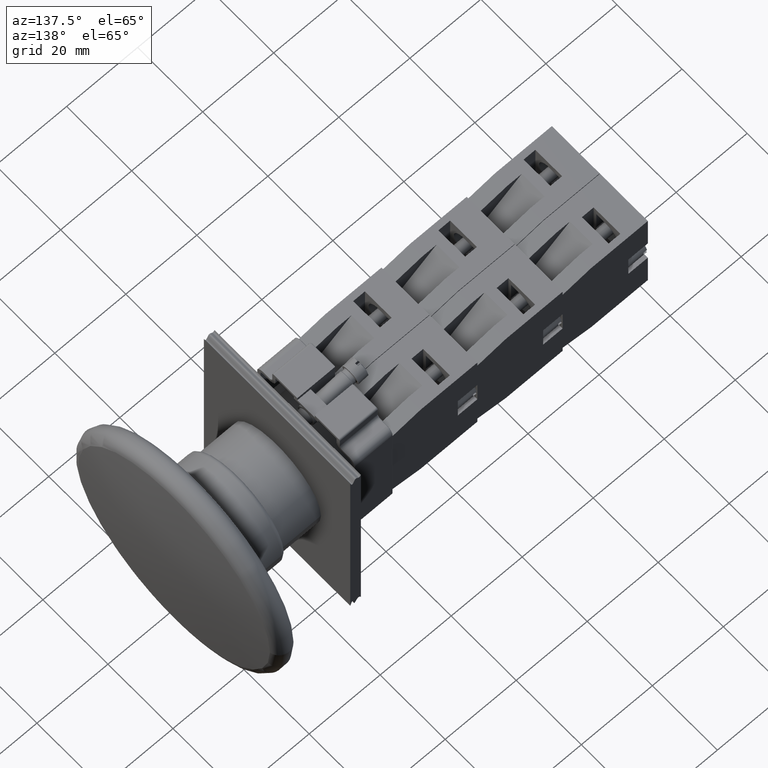
[diagram: clean part render]
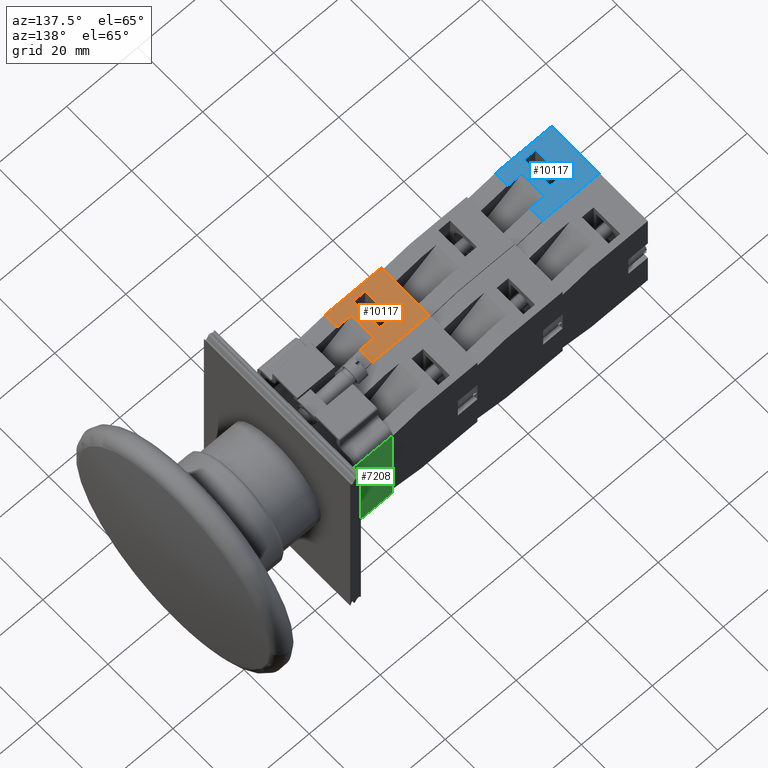
[diagram: same view with three faces highlighted in distinct colors, each labeled with its STEP entity id]
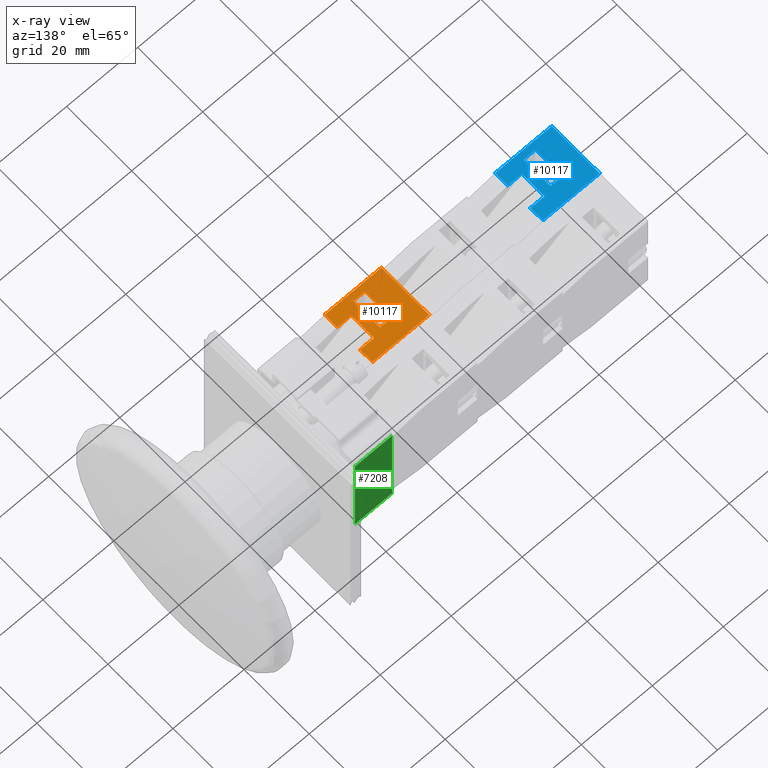
[diagram: x-ray of the same camera — body ghosted, the three highlighted faces saturated]
A machine part, auxiliary view with three faces highlighted in distinct colors.
The next image is the same camera in x-ray (body ghosted, the three faces saturated) — at least one of them is partly hidden behind the body in this view.
Their STEP definitions:

[orange] entity #10117 — the highlighted planar face has unit normal (0, 0, 1).
#8578=CARTESIAN_POINT('',(-15.936741828918466,7.797073323279626,10.850000000000000));
#8579=VERTEX_POINT('',#8578);
#8594=CARTESIAN_POINT('',(-15.936741828918466,11.797073323279626,10.850000000000000));
#8595=VERTEX_POINT('',#8594);
#8602=CARTESIAN_POINT('',(-15.936741828918466,7.797073323279626,10.850000000000000));
#8603=DIRECTION('',(0.0,1.0,0.0));
#8604=VECTOR('',#8603,4.0);
#8605=LINE('',#8602,#8604);
#8606=EDGE_CURVE('',#8579,#8595,#8605,.T.);
#8616=CARTESIAN_POINT('',(-15.936741828918466,11.797073323279626,3.850000000000001));
#8617=VERTEX_POINT('',#8616);
#8626=CARTESIAN_POINT('',(-15.936741828918466,11.797073323279626,10.850000000000000));
#8627=DIRECTION('',(0.0,0.0,-1.0));
#8628=VECTOR('',#8627,6.999999999999999);
#8629=LINE('',#8626,#8628);
#8630=EDGE_CURVE('',#8595,#8617,#8629,.T.);
#8647=CARTESIAN_POINT('',(-15.936741828918466,7.797073323279631,3.850000000000000));
#8648=VERTEX_POINT('',#8647);
#8657=CARTESIAN_POINT('',(-15.936741828918466,11.797073323279626,3.850000000000001));
#8658=DIRECTION('',(0.0,-1.0,0.0));
#8659=VECTOR('',#8658,3.999999999999996);
#8660=LINE('',#8657,#8659);
#8661=EDGE_CURVE('',#8617,#8648,#8660,.T.);
#8797=CARTESIAN_POINT('',(-15.936741828918466,7.797073323279626,14.699999999999999));
#8798=VERTEX_POINT('',#8797);
#8799=CARTESIAN_POINT('',(-15.936741828918466,7.797073323279626,10.850000000000000));
#8800=DIRECTION('',(0.0,0.0,1.0));
#8801=VECTOR('',#8800,3.850000000000000);
#8802=LINE('',#8799,#8801);
#8803=EDGE_CURVE('',#8579,#8798,#8802,.T.);
#9225=CARTESIAN_POINT('',(-15.936741828918466,17.597073323279638,4.800000000000001));
#9226=VERTEX_POINT('',#9225);
#9233=CARTESIAN_POINT('',(-15.936741828918466,17.597073323279638,13.0));
#9234=VERTEX_POINT('',#9233);
#9235=CARTESIAN_POINT('',(-15.936741828918466,17.597073323279638,13.0));
#9236=DIRECTION('',(0.0,0.0,-1.0));
#9237=VECTOR('',#9236,8.199999999999999);
#9238=LINE('',#9235,#9237);
#9239=EDGE_CURVE('',#9234,#9226,#9238,.T.);
#9316=CARTESIAN_POINT('',(-15.936741828918475,14.297073323279639,13.0));
#9317=VERTEX_POINT('',#9316);
#9318=CARTESIAN_POINT('',(-15.936741828918475,14.297073323279639,13.0));
#9319=DIRECTION('',(0.0,1.0,0.0));
#9320=VECTOR('',#9319,3.299999999999999);
#9321=LINE('',#9318,#9320);
#9322=EDGE_CURVE('',#9317,#9234,#9321,.T.);
#9534=CARTESIAN_POINT('',(-15.936741828918475,14.297073323279637,4.800000000000002));
#9535=VERTEX_POINT('',#9534);
#9542=CARTESIAN_POINT('',(-15.936741828918466,17.597073323279638,4.800000000000001));
#9543=DIRECTION('',(0.0,-1.0,0.0));
#9544=VECTOR('',#9543,3.300000000000001);
#9545=LINE('',#9542,#9544);
#9546=EDGE_CURVE('',#9226,#9535,#9545,.T.);
#9791=CARTESIAN_POINT('',(-15.936741828918475,14.297073323279637,4.800000000000002));
#9792=DIRECTION('',(0.0,0.0,1.0));
#9793=VECTOR('',#9792,8.199999999999999);
#9794=LINE('',#9791,#9793);
#9795=EDGE_CURVE('',#9535,#9317,#9794,.T.);
#10029=CARTESIAN_POINT('',(-15.936741828918466,23.797073323279626,14.699999999999999));
#10030=VERTEX_POINT('',#10029);
#10037=CARTESIAN_POINT('',(-15.936741828918466,23.797073323279626,0.0));
#10038=VERTEX_POINT('',#10037);
#10039=CARTESIAN_POINT('',(-15.936741828918466,23.797073323279626,0.0));
#10040=DIRECTION('',(0.0,0.0,1.0));
#10041=VECTOR('',#10040,14.699999999999999);
#10042=LINE('',#10039,#10041);
#10043=EDGE_CURVE('',#10038,#10030,#10042,.T.);
#10079=CARTESIAN_POINT('',(-15.936741828918466,23.797073323279626,0.0));
#10080=DIRECTION('',(1.0,0.0,0.0));
#10081=DIRECTION('',(0.0,0.0,-1.0));
#10082=AXIS2_PLACEMENT_3D('',#10079,#10080,#10081);
#10083=PLANE('',#10082);
#10084=ORIENTED_EDGE('',*,*,#8661,.T.);
#10085=CARTESIAN_POINT('',(-15.936741828918466,7.797073323279626,0.0));
#10086=VERTEX_POINT('',#10085);
#10087=CARTESIAN_POINT('',(-15.936741828918466,7.797073323279626,0.0));
#10088=DIRECTION('',(0.0,0.0,1.0));
#10089=VECTOR('',#10088,3.850000000000000);
#10090=LINE('',#10087,#10089);
#10091=EDGE_CURVE('',#10086,#8648,#10090,.T.);
#10092=ORIENTED_EDGE('',*,*,#10091,.F.);
#10093=CARTESIAN_POINT('',(-15.936741828918466,23.797073323279626,0.0));
#10094=DIRECTION('',(0.0,-1.0,0.0));
#10095=VECTOR('',#10094,16.0);
#10096=LINE('',#10093,#10095);
#10097=EDGE_CURVE('',#10038,#10086,#10096,.T.);
#10098=ORIENTED_EDGE('',*,*,#10097,.F.);
#10099=ORIENTED_EDGE('',*,*,#10043,.T.);
#10100=CARTESIAN_POINT('',(-15.936741828918466,23.797073323279626,14.699999999999999));
#10101=DIRECTION('',(0.0,-1.0,0.0));
#10102=VECTOR('',#10101,16.0);
#10103=LINE('',#10100,#10102);
#10104=EDGE_CURVE('',#10030,#8798,#10103,.T.);
#10105=ORIENTED_EDGE('',*,*,#10104,.T.);
#10106=ORIENTED_EDGE('',*,*,#8803,.F.);
#10107=ORIENTED_EDGE('',*,*,#8606,.T.);
#10108=ORIENTED_EDGE('',*,*,#8630,.T.);
#10109=EDGE_LOOP('',(#10084,#10092,#10098,#10099,#10105,#10106,#10107,#10108));
#10110=FACE_OUTER_BOUND('',#10109,.T.);
#10111=ORIENTED_EDGE('',*,*,#9546,.T.);
#10112=ORIENTED_EDGE('',*,*,#9795,.T.);
#10113=ORIENTED_EDGE('',*,*,#9322,.T.);
#10114=ORIENTED_EDGE('',*,*,#9239,.T.);
#10115=EDGE_LOOP('',(#10111,#10112,#10113,#10114));
#10116=FACE_BOUND('',#10115,.T.);
#10117=ADVANCED_FACE('',(#10110,#10116),#10083,.T.);

[blue] entity #10117 — the highlighted planar face has unit normal (0, 0, 1).
#8578=CARTESIAN_POINT('',(-15.936741828918466,7.797073323279626,10.850000000000000));
#8579=VERTEX_POINT('',#8578);
#8594=CARTESIAN_POINT('',(-15.936741828918466,11.797073323279626,10.850000000000000));
#8595=VERTEX_POINT('',#8594);
#8602=CARTESIAN_POINT('',(-15.936741828918466,7.797073323279626,10.850000000000000));
#8603=DIRECTION('',(0.0,1.0,0.0));
#8604=VECTOR('',#8603,4.0);
#8605=LINE('',#8602,#8604);
#8606=EDGE_CURVE('',#8579,#8595,#8605,.T.);
#8616=CARTESIAN_POINT('',(-15.936741828918466,11.797073323279626,3.850000000000001));
#8617=VERTEX_POINT('',#8616);
#8626=CARTESIAN_POINT('',(-15.936741828918466,11.797073323279626,10.850000000000000));
#8627=DIRECTION('',(0.0,0.0,-1.0));
#8628=VECTOR('',#8627,6.999999999999999);
#8629=LINE('',#8626,#8628);
#8630=EDGE_CURVE('',#8595,#8617,#8629,.T.);
#8647=CARTESIAN_POINT('',(-15.936741828918466,7.797073323279631,3.850000000000000));
#8648=VERTEX_POINT('',#8647);
#8657=CARTESIAN_POINT('',(-15.936741828918466,11.797073323279626,3.850000000000001));
#8658=DIRECTION('',(0.0,-1.0,0.0));
#8659=VECTOR('',#8658,3.999999999999996);
#8660=LINE('',#8657,#8659);
#8661=EDGE_CURVE('',#8617,#8648,#8660,.T.);
#8797=CARTESIAN_POINT('',(-15.936741828918466,7.797073323279626,14.699999999999999));
#8798=VERTEX_POINT('',#8797);
#8799=CARTESIAN_POINT('',(-15.936741828918466,7.797073323279626,10.850000000000000));
#8800=DIRECTION('',(0.0,0.0,1.0));
#8801=VECTOR('',#8800,3.850000000000000);
#8802=LINE('',#8799,#8801);
#8803=EDGE_CURVE('',#8579,#8798,#8802,.T.);
#9225=CARTESIAN_POINT('',(-15.936741828918466,17.597073323279638,4.800000000000001));
#9226=VERTEX_POINT('',#9225);
#9233=CARTESIAN_POINT('',(-15.936741828918466,17.597073323279638,13.0));
#9234=VERTEX_POINT('',#9233);
#9235=CARTESIAN_POINT('',(-15.936741828918466,17.597073323279638,13.0));
#9236=DIRECTION('',(0.0,0.0,-1.0));
#9237=VECTOR('',#9236,8.199999999999999);
#9238=LINE('',#9235,#9237);
#9239=EDGE_CURVE('',#9234,#9226,#9238,.T.);
#9316=CARTESIAN_POINT('',(-15.936741828918475,14.297073323279639,13.0));
#9317=VERTEX_POINT('',#9316);
#9318=CARTESIAN_POINT('',(-15.936741828918475,14.297073323279639,13.0));
#9319=DIRECTION('',(0.0,1.0,0.0));
#9320=VECTOR('',#9319,3.299999999999999);
#9321=LINE('',#9318,#9320);
#9322=EDGE_CURVE('',#9317,#9234,#9321,.T.);
#9534=CARTESIAN_POINT('',(-15.936741828918475,14.297073323279637,4.800000000000002));
#9535=VERTEX_POINT('',#9534);
#9542=CARTESIAN_POINT('',(-15.936741828918466,17.597073323279638,4.800000000000001));
#9543=DIRECTION('',(0.0,-1.0,0.0));
#9544=VECTOR('',#9543,3.300000000000001);
#9545=LINE('',#9542,#9544);
#9546=EDGE_CURVE('',#9226,#9535,#9545,.T.);
#9791=CARTESIAN_POINT('',(-15.936741828918475,14.297073323279637,4.800000000000002));
#9792=DIRECTION('',(0.0,0.0,1.0));
#9793=VECTOR('',#9792,8.199999999999999);
#9794=LINE('',#9791,#9793);
#9795=EDGE_CURVE('',#9535,#9317,#9794,.T.);
#10029=CARTESIAN_POINT('',(-15.936741828918466,23.797073323279626,14.699999999999999));
#10030=VERTEX_POINT('',#10029);
#10037=CARTESIAN_POINT('',(-15.936741828918466,23.797073323279626,0.0));
#10038=VERTEX_POINT('',#10037);
#10039=CARTESIAN_POINT('',(-15.936741828918466,23.797073323279626,0.0));
#10040=DIRECTION('',(0.0,0.0,1.0));
#10041=VECTOR('',#10040,14.699999999999999);
#10042=LINE('',#10039,#10041);
#10043=EDGE_CURVE('',#10038,#10030,#10042,.T.);
#10079=CARTESIAN_POINT('',(-15.936741828918466,23.797073323279626,0.0));
#10080=DIRECTION('',(1.0,0.0,0.0));
#10081=DIRECTION('',(0.0,0.0,-1.0));
#10082=AXIS2_PLACEMENT_3D('',#10079,#10080,#10081);
#10083=PLANE('',#10082);
#10084=ORIENTED_EDGE('',*,*,#8661,.T.);
#10085=CARTESIAN_POINT('',(-15.936741828918466,7.797073323279626,0.0));
#10086=VERTEX_POINT('',#10085);
#10087=CARTESIAN_POINT('',(-15.936741828918466,7.797073323279626,0.0));
#10088=DIRECTION('',(0.0,0.0,1.0));
#10089=VECTOR('',#10088,3.850000000000000);
#10090=LINE('',#10087,#10089);
#10091=EDGE_CURVE('',#10086,#8648,#10090,.T.);
#10092=ORIENTED_EDGE('',*,*,#10091,.F.);
#10093=CARTESIAN_POINT('',(-15.936741828918466,23.797073323279626,0.0));
#10094=DIRECTION('',(0.0,-1.0,0.0));
#10095=VECTOR('',#10094,16.0);
#10096=LINE('',#10093,#10095);
#10097=EDGE_CURVE('',#10038,#10086,#10096,.T.);
#10098=ORIENTED_EDGE('',*,*,#10097,.F.);
#10099=ORIENTED_EDGE('',*,*,#10043,.T.);
#10100=CARTESIAN_POINT('',(-15.936741828918466,23.797073323279626,14.699999999999999));
#10101=DIRECTION('',(0.0,-1.0,0.0));
#10102=VECTOR('',#10101,16.0);
#10103=LINE('',#10100,#10102);
#10104=EDGE_CURVE('',#10030,#8798,#10103,.T.);
#10105=ORIENTED_EDGE('',*,*,#10104,.T.);
#10106=ORIENTED_EDGE('',*,*,#8803,.F.);
#10107=ORIENTED_EDGE('',*,*,#8606,.T.);
#10108=ORIENTED_EDGE('',*,*,#8630,.T.);
#10109=EDGE_LOOP('',(#10084,#10092,#10098,#10099,#10105,#10106,#10107,#10108));
#10110=FACE_OUTER_BOUND('',#10109,.T.);
#10111=ORIENTED_EDGE('',*,*,#9546,.T.);
#10112=ORIENTED_EDGE('',*,*,#9795,.T.);
#10113=ORIENTED_EDGE('',*,*,#9322,.T.);
#10114=ORIENTED_EDGE('',*,*,#9239,.T.);
#10115=EDGE_LOOP('',(#10111,#10112,#10113,#10114));
#10116=FACE_BOUND('',#10115,.T.);
#10117=ADVANCED_FACE('',(#10110,#10116),#10083,.T.);

[green] entity #7208 — the highlighted planar face has unit normal (0, 1, -0).
#2667=CARTESIAN_POINT('',(14.967219691723891,25.142864828157556,10.500000000000000));
#2668=VERTEX_POINT('',#2667);
#2703=CARTESIAN_POINT('',(-13.332780308276099,25.142864828157556,10.500000000000000));
#2704=VERTEX_POINT('',#2703);
#2736=CARTESIAN_POINT('',(14.967219691723891,25.142864828157556,10.500000000000000));
#2737=DIRECTION('',(-1.0,0.0,0.0));
#2738=VECTOR('',#2737,28.299999999999990);
#2739=LINE('',#2736,#2738);
#2740=EDGE_CURVE('',#2668,#2704,#2739,.T.);
#2766=CARTESIAN_POINT('',(14.967219691723891,25.142864828157556,0.0));
#2767=VERTEX_POINT('',#2766);
#2775=CARTESIAN_POINT('',(14.967219691723891,25.142864828157556,0.0));
#2776=DIRECTION('',(0.0,0.0,1.0));
#2777=VECTOR('',#2776,10.500000000000000);
#2778=LINE('',#2775,#2777);
#2779=EDGE_CURVE('',#2767,#2668,#2778,.T.);
#5648=CARTESIAN_POINT('',(-13.332780308276099,25.142864828157556,0.0));
#5649=VERTEX_POINT('',#5648);
#5657=CARTESIAN_POINT('',(14.967219691723891,25.142864828157556,0.0));
#5658=DIRECTION('',(-1.0,0.0,0.0));
#5659=VECTOR('',#5658,28.299999999999990);
#5660=LINE('',#5657,#5659);
#5661=EDGE_CURVE('',#2767,#5649,#5660,.T.);
#7186=CARTESIAN_POINT('',(-13.332780308276099,25.142864828157556,0.0));
#7187=DIRECTION('',(0.0,0.0,1.0));
#7188=VECTOR('',#7187,10.500000000000000);
#7189=LINE('',#7186,#7188);
#7190=EDGE_CURVE('',#5649,#2704,#7189,.T.);
#7197=CARTESIAN_POINT('',(-13.332780308276099,25.142864828157556,0.0));
#7198=DIRECTION('',(0.0,1.0,0.0));
#7199=DIRECTION('',(0.0,0.0,1.0));
#7200=AXIS2_PLACEMENT_3D('',#7197,#7198,#7199);
#7201=PLANE('',#7200);
#7202=ORIENTED_EDGE('',*,*,#2740,.F.);
#7203=ORIENTED_EDGE('',*,*,#2779,.F.);
#7204=ORIENTED_EDGE('',*,*,#5661,.T.);
#7205=ORIENTED_EDGE('',*,*,#7190,.T.);
#7206=EDGE_LOOP('',(#7202,#7203,#7204,#7205));
#7207=FACE_OUTER_BOUND('',#7206,.T.);
#7208=ADVANCED_FACE('',(#7207),#7201,.T.);